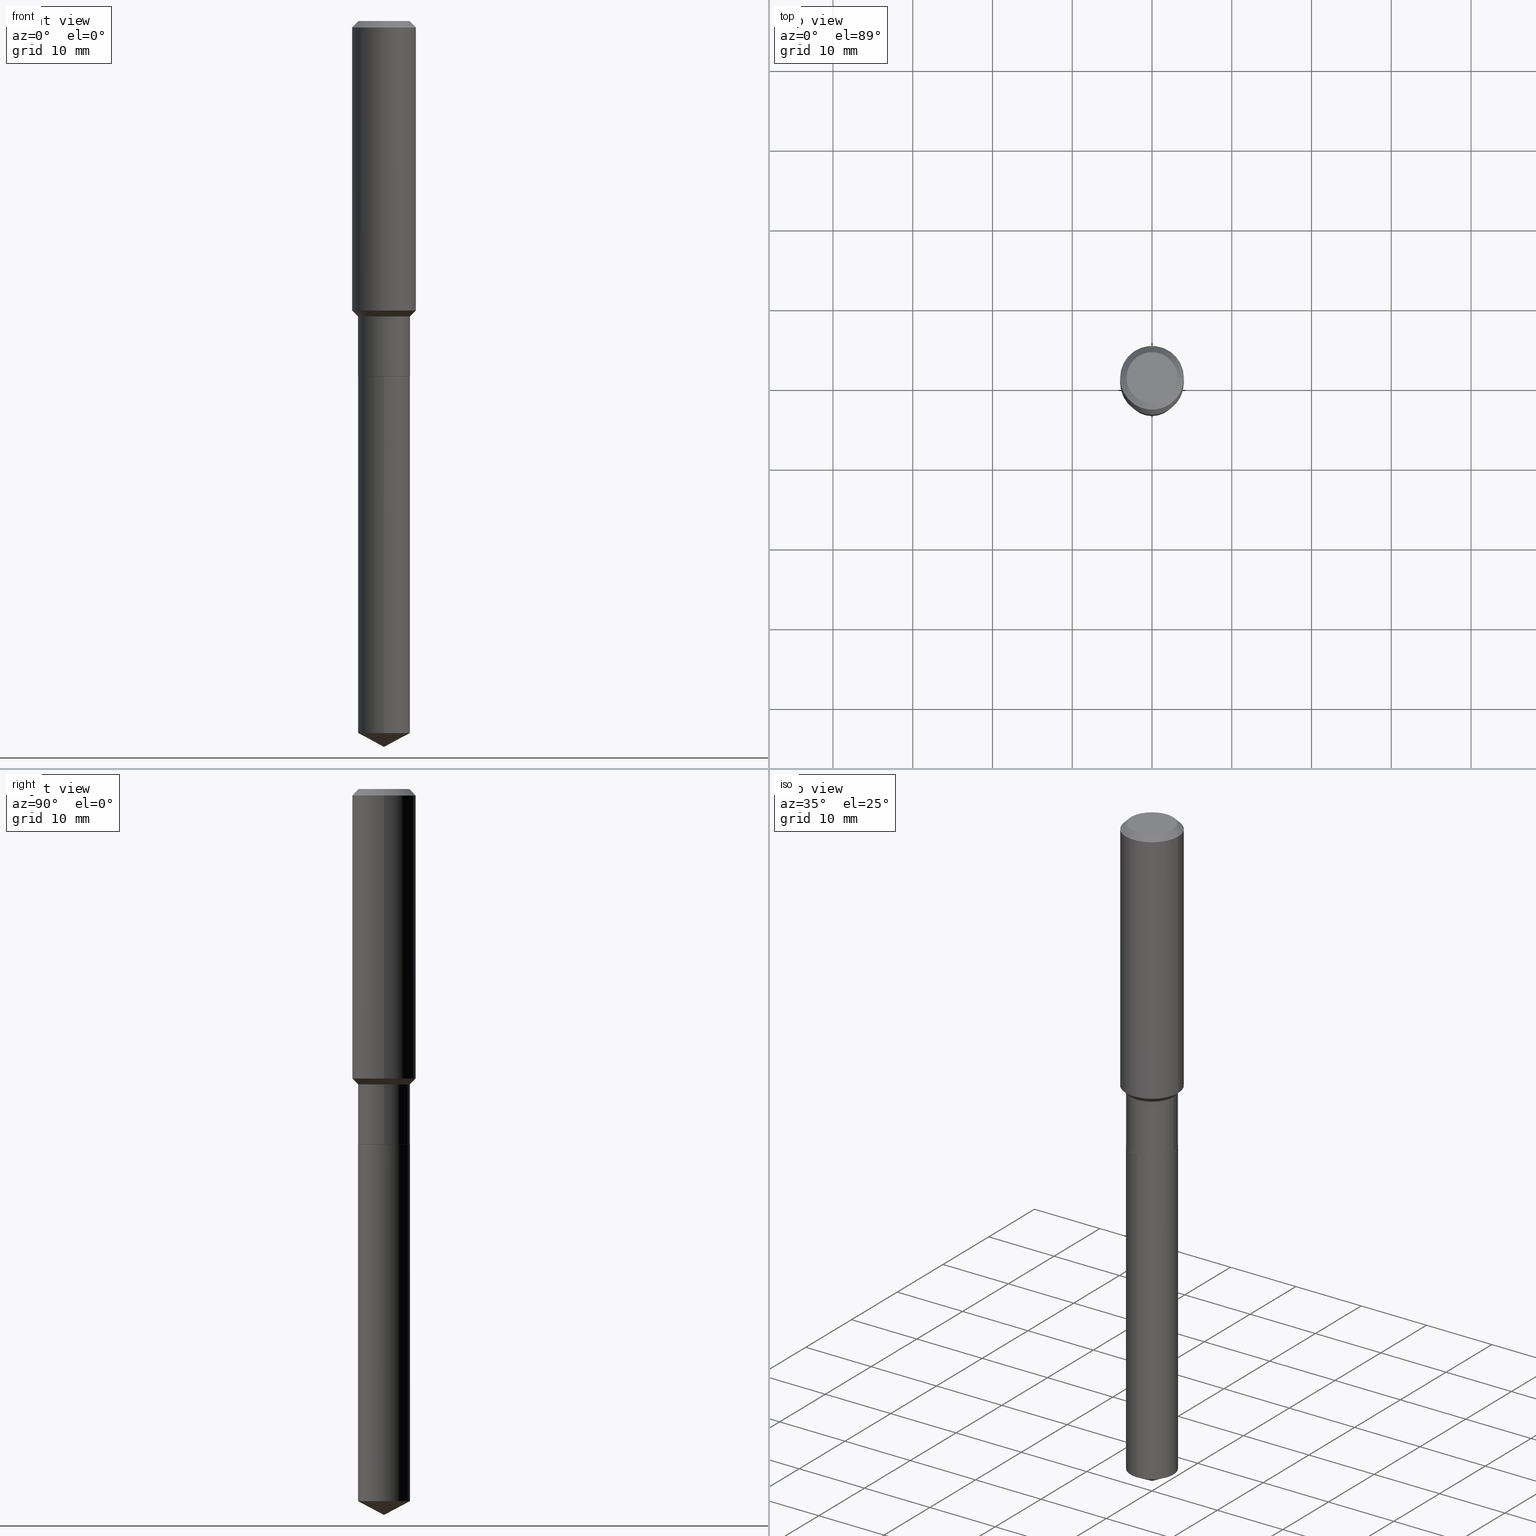
[diagram: canonical four-view strip — front | top / right | iso, engineering-drawing reading convention]
A machine part, canonical four-view strip (front | top / right | iso — engineering-drawing reading convention). The complete STEP part file that produces these views, byte-faithful:
ISO-10303-21;
HEADER;
FILE_DESCRIPTION (( 'STEP AP203' ),
    '1' );
FILE_NAME ('55171.STEP',
    '2024-04-24T16:48:14',
    ( '' ),
    ( '' ),
    'SwSTEP 2.0',
    'SolidWorks 2023',
    '' );
FILE_SCHEMA (( 'CONFIG_CONTROL_DESIGN' ));
ENDSEC;

DATA;
#1 = ORIENTED_EDGE ( 'NONE', *, *, #156, .T. ) ;
#2 = CARTESIAN_POINT ( 'NONE',  ( 9.130474154518147468E-16, 0.1284999999999877629, -3.514675338031501450 ) ) ;
#3 = AXIS2_PLACEMENT_3D ( 'NONE', #297, #151, #337 ) ;
#4 = AXIS2_PLACEMENT_3D ( 'NONE', #187, #296, #345 ) ;
#5 = PERSON_AND_ORGANIZATION ( #161, #273 ) ;
#6 = CARTESIAN_POINT ( 'NONE',  ( 8.762114242692642078E-29, -1.250997833859485187E-14, -3.583000000000000185 ) ) ;
#7 = EDGE_CURVE ( 'NONE', #407, #94, #390, .T. ) ;
#8 =( NAMED_UNIT ( * ) SI_UNIT ( $, .STERADIAN. ) SOLID_ANGLE_UNIT ( ) );
#9 = LINE ( 'NONE', #355, #428 ) ;
#10 = DIRECTION ( 'NONE',  ( 0.7071067811865479058, -2.468850131082261399E-15, 0.7071067811865470176 ) ) ;
#11 = ORIENTED_EDGE ( 'NONE', *, *, #115, .F. ) ;
#12 = EDGE_CURVE ( 'NONE', #289, #144, #204, .T. ) ;
#13 = EDGE_LOOP ( 'NONE', ( #110, #223, #470, #251 ) ) ;
#14 = CARTESIAN_POINT ( 'NONE',  ( 8.595028662167520806E-29, -1.227142369974973413E-14, -3.514675338031501006 ) ) ;
#15 = CIRCLE ( 'NONE', #238, 0.1575000000000001676 ) ;
#16 = EDGE_LOOP ( 'NONE', ( #128, #63, #18, #295 ) ) ;
#17 = CARTESIAN_POINT ( 'NONE',  ( 0.1575000000000000844, -1.099816621735587677E-15, 7.679978421878603638E-30 ) ) ;
#18 = ORIENTED_EDGE ( 'NONE', *, *, #29, .F. ) ;
#19 = ORIENTED_EDGE ( 'NONE', *, *, #206, .F. ) ;
#20 = LINE ( 'NONE', #334, #131 ) ;
#21 = CIRCLE ( 'NONE', #471, 0.1280000000000000027 ) ;
#22 =( GEOMETRIC_REPRESENTATION_CONTEXT ( 3 ) GLOBAL_UNCERTAINTY_ASSIGNED_CONTEXT ( ( #200 ) ) GLOBAL_UNIT_ASSIGNED_CONTEXT ( ( #51, #164, #8 ) ) REPRESENTATION_CONTEXT ( 'NONE', 'WORKASPACE' ) );
#23 = ORIENTED_EDGE ( 'NONE', *, *, #425, .F. ) ;
#24 = CARTESIAN_POINT ( 'NONE',  ( 3.564026238134218164E-29, -5.088484903230000551E-15, -1.457400000000000251 ) ) ;
#25 = DIRECTION ( 'NONE',  ( -2.445468806185136597E-29, 3.491481338843145583E-15, 1.000000000000000000 ) ) ;
#26 = DIRECTION ( 'NONE',  ( -2.445468806185136597E-29, 3.491481338843145583E-15, 1.000000000000000000 ) ) ;
#27 = LINE ( 'NONE', #414, #46 ) ;
#28 = CARTESIAN_POINT ( 'NONE',  ( 9.130474154517715566E-16, 0.1284999999999938969, -1.753000000000000336 ) ) ;
#29 = EDGE_CURVE ( 'NONE', #144, #289, #180, .T. ) ;
#30 = CARTESIAN_POINT ( 'NONE',  ( -9.439721640706201686E-47, 1.347742071746726764E-32, 3.860086710912459732E-18 ) ) ;
#31 = CARTESIAN_POINT ( 'NONE',  ( 4.285684082839451370E-29, -6.118821046322612189E-15, -1.752499999999999947 ) ) ;
#32 = EDGE_CURVE ( 'NONE', #298, #135, #121, .T. ) ;
#33 = AXIS2_PLACEMENT_3D ( 'NONE', #14, #443, #249 ) ;
#34 = AXIS2_PLACEMENT_3D ( 'NONE', #302, #449, #73 ) ;
#35 = CARTESIAN_POINT ( 'NONE',  ( 0.000000000000000000, 0.000000000000000000, 0.000000000000000000 ) ) ;
#36 = DIRECTION ( 'NONE',  ( -6.982962677686265922E-15, -1.000000000000000000, 4.251903492084456561E-15 ) ) ;
#37 = DATE_AND_TIME ( #418, #47 ) ;
#38 = CARTESIAN_POINT ( 'NONE',  ( -0.1285000000000000309, -4.690605559324578003E-15, -1.752499999999999947 ) ) ;
#39 = PRODUCT_DEFINITION ( 'UNKNOWN', '', #59, #120 ) ;
#40 = PERSON_AND_ORGANIZATION_ROLE ( 'creator' ) ;
#41 = AXIS2_PLACEMENT_3D ( 'NONE', #112, #268, #276 ) ;
#42 = AXIS2_PLACEMENT_3D ( 'NONE', #416, #220, #261 ) ;
#43 = EDGE_CURVE ( 'NONE', #316, #219, #21, .T. ) ;
#44 = CARTESIAN_POINT ( 'NONE',  ( 0.1280000000000000027, -7.014386009735874285E-15, -1.752999999999999670 ) ) ;
#45 = DIRECTION ( 'NONE',  ( 1.000000000000000000, -6.982962677686263555E-15, 0.000000000000000000 ) ) ;
#46 = VECTOR ( 'NONE', #374, 39.37007874015748143 ) ;
#47 = LOCAL_TIME ( 12, 48, 14.00000000000000000, #263 ) ;
#48 = DIRECTION ( 'NONE',  ( 1.000000000000000000, -6.982962677686267499E-15, 0.000000000000000000 ) ) ;
#49 = ADVANCED_FACE ( 'NONE', ( #96 ), #405, .T. ) ;
#50 = CARTESIAN_POINT ( 'NONE',  ( 8.762114242692642078E-29, -1.250997833859485187E-14, -3.583000000000000185 ) ) ;
#51 =( CONVERSION_BASED_UNIT ( 'INCH', #393 ) LENGTH_UNIT ( ) NAMED_UNIT ( #307 ) );
#52 = ORIENTED_EDGE ( 'NONE', *, *, #91, .F. ) ;
#53 = EDGE_CURVE ( 'NONE', #147, #361, #56, .T. ) ;
#54 =( LENGTH_UNIT ( ) NAMED_UNIT ( * ) SI_UNIT ( $, .METRE. ) );
#55 = ORIENTED_EDGE ( 'NONE', *, *, #87, .F. ) ;
#56 = LINE ( 'NONE', #17, #309 ) ;
#57 = AXIS2_PLACEMENT_3D ( 'NONE', #30, #265, #378 ) ;
#58 = AXIS2_PLACEMENT_3D ( 'NONE', #218, #475, #69 ) ;
#59 = PRODUCT_DEFINITION_FORMATION_WITH_SPECIFIED_SOURCE ( 'ANY', '', #176, .NOT_KNOWN. ) ;
#60 = ADVANCED_BREP_SHAPE_REPRESENTATION ( '55171', ( #193, #203, #310 ), #22 ) ;
#61 = FACE_OUTER_BOUND ( 'NONE', #366, .T. ) ;
#62 = ADVANCED_FACE ( 'NONE', ( #61 ), #222, .T. ) ;
#63 = ORIENTED_EDGE ( 'NONE', *, *, #425, .T. ) ;
#64 = CC_DESIGN_PERSON_AND_ORGANIZATION_ASSIGNMENT ( #5, #239, ( #176 ) ) ;
#65 = DIRECTION ( 'NONE',  ( 1.000000000000000000, -6.982962677686270655E-15, 0.000000000000000000 ) ) ;
#66 = DIRECTION ( 'NONE',  ( -2.445468806185136877E-29, 3.491481338843145188E-15, 1.000000000000000000 ) ) ;
#67 = DIRECTION ( 'NONE',  ( -2.445468669464873816E-29, 3.491481534634343453E-15, 1.000000000000000000 ) ) ;
#68 = EDGE_CURVE ( 'NONE', #269, #361, #27, .T. ) ;
#69 = DIRECTION ( 'NONE',  ( 1.000000000000000000, -6.982962677686267499E-15, 0.000000000000000000 ) ) ;
#70 = EDGE_LOOP ( 'NONE', ( #367, #488, #440, #11 ) ) ;
#71 = FACE_OUTER_BOUND ( 'NONE', #216, .T. ) ;
#72 = LINE ( 'NONE', #423, #163 ) ;
#73 = DIRECTION ( 'NONE',  ( -6.982962677686265922E-15, -1.000000000000000000, 4.251903492084456561E-15 ) ) ;
#74 = DIRECTION ( 'NONE',  ( -2.445468806185136597E-29, 3.491481338843145583E-15, 1.000000000000000000 ) ) ;
#75 = APPLICATION_CONTEXT ( 'configuration controlled 3d designs of mechanical parts and assemblies' ) ;
#76 = AXIS2_PLACEMENT_3D ( 'NONE', #168, #208, #322 ) ;
#77 = DIRECTION ( 'NONE',  ( -2.445468806185136597E-29, 3.491481338843145583E-15, 1.000000000000000000 ) ) ;
#78 = ORIENTED_EDGE ( 'NONE', *, *, #281, .T. ) ;
#79 = CARTESIAN_POINT ( 'NONE',  ( 4.286906817242543611E-29, -6.120566786992032115E-15, -1.752999999999999670 ) ) ;
#80 = FACE_OUTER_BOUND ( 'NONE', #362, .T. ) ;
#81 = CALENDAR_DATE ( 2024, 24, 4 ) ;
#82 = DIRECTION ( 'NONE',  ( 1.000000000000000000, -6.982962677686267499E-15, 4.876176775795936353E-29 ) ) ;
#83 = DATE_AND_TIME ( #458, #320 ) ;
#84 = SHAPE_DEFINITION_REPRESENTATION ( #430, #60 ) ;
#85 = CIRCLE ( 'NONE', #58, 0.1575000000000001676 ) ;
#86 = AXIS2_PLACEMENT_3D ( 'NONE', #89, #133, #389 ) ;
#87 = EDGE_CURVE ( 'NONE', #395, #165, #398, .T. ) ;
#88 = CONICAL_SURFACE ( 'NONE', #368, 0.1284999999999999754, 0.7853981633974489451 ) ;
#89 = CARTESIAN_POINT ( 'NONE',  ( 7.703226739483228723E-31, -1.099816621735597661E-16, -0.03150000000000019451 ) ) ;
#90 = DIRECTION ( 'NONE',  ( 1.000000000000000000, -6.982962677686267499E-15, 4.876176775795936353E-29 ) ) ;
#91 = EDGE_CURVE ( 'NONE', #407, #135, #72, .T. ) ;
#92 = EDGE_LOOP ( 'NONE', ( #23, #338, #214, #435 ) ) ;
#93 = CARTESIAN_POINT ( 'NONE',  ( 3.564026238134218164E-29, -5.088484903230000551E-15, -1.457400000000000251 ) ) ;
#94 = VERTEX_POINT ( 'NONE', #2 ) ;
#95 = ORIENTED_EDGE ( 'NONE', *, *, #325, .T. ) ;
#96 = FACE_OUTER_BOUND ( 'NONE', #142, .T. ) ;
#97 = ORIENTED_EDGE ( 'NONE', *, *, #431, .F. ) ;
#98 = DIRECTION ( 'NONE',  ( 1.000000000000000000, -6.982962677686265922E-15, 4.876176775795935232E-29 ) ) ;
#99 = COORDINATED_UNIVERSAL_TIME_OFFSET ( 5, 0, .BEHIND. ) ;
#100 = APPROVAL ( #192, 'UNSPECIFIED' ) ;
#101 = ORIENTED_EDGE ( 'NONE', *, *, #91, .T. ) ;
#102 = ORIENTED_EDGE ( 'NONE', *, *, #115, .T. ) ;
#103 = LINE ( 'NONE', #183, #122 ) ;
#104 = FACE_OUTER_BOUND ( 'NONE', #194, .T. ) ;
#105 = AXIS2_PLACEMENT_3D ( 'NONE', #305, #376, #411 ) ;
#106 = DIRECTION ( 'NONE',  ( -0.7071067811865479058, 7.493145998870355738E-15, 0.7071067811865470176 ) ) ;
#107 = APPROVAL ( #175, 'UNSPECIFIED' ) ;
#108 = DIRECTION ( 'NONE',  ( -6.982962677686266711E-15, -1.000000000000000000, 3.541896320645532864E-15 ) ) ;
#109 = COORDINATED_UNIVERSAL_TIME_OFFSET ( 5, 0, .BEHIND. ) ;
#110 = ORIENTED_EDGE ( 'NONE', *, *, #29, .T. ) ;
#111 = CARTESIAN_POINT ( 'NONE',  ( 4.286906817242544172E-29, -6.120566786992033692E-15, -1.752999999999999892 ) ) ;
#112 = CARTESIAN_POINT ( 'NONE',  ( 8.595028662167520806E-29, -1.227142369974973413E-14, -3.514675338031501006 ) ) ;
#113 = CARTESIAN_POINT ( 'NONE',  ( 4.286906817242544172E-29, -6.120566786992033692E-15, -1.752999999999999892 ) ) ;
#114 = DATE_AND_TIME ( #81, #381 ) ;
#115 = EDGE_CURVE ( 'NONE', #134, #469, #448, .T. ) ;
#116 = VECTOR ( 'NONE', #480, 39.37007874015748143 ) ;
#117 = CIRCLE ( 'NONE', #34, 0.1285000000000000031 ) ;
#118 = PLANE ( 'NONE',  #129 ) ;
#119 = ADVANCED_FACE ( 'NONE', ( #188 ), #88, .T. ) ;
#120 = DESIGN_CONTEXT ( 'detailed design', #75, 'design' ) ;
#121 = CIRCLE ( 'NONE', #76, 0.1285000000000000031 ) ;
#122 = VECTOR ( 'NONE', #66, 39.37007874015748143 ) ;
#123 = CC_DESIGN_APPROVAL ( #107, ( #39 ) ) ;
#124 = DIRECTION ( 'NONE',  ( -2.445468806185136597E-29, 3.491481338843145583E-15, 1.000000000000000000 ) ) ;
#125 = LINE ( 'NONE', #50, #386 ) ;
#126 = APPROVAL ( #424, 'UNSPECIFIED' ) ;
#127 = FACE_OUTER_BOUND ( 'NONE', #70, .T. ) ;
#128 = ORIENTED_EDGE ( 'NONE', *, *, #87, .T. ) ;
#129 = AXIS2_PLACEMENT_3D ( 'NONE', #191, #196, #266 ) ;
#130 = ORIENTED_EDGE ( 'NONE', *, *, #437, .T. ) ;
#131 = VECTOR ( 'NONE', #106, 39.37007874015748854 ) ;
#132 = CARTESIAN_POINT ( 'NONE',  ( -0.1284999999999999754, -4.690605559324578003E-15, -1.457400000000000251 ) ) ;
#133 = DIRECTION ( 'NONE',  ( 2.445468806185136597E-29, -3.491481338843145583E-15, -1.000000000000000000 ) ) ;
#134 = VERTEX_POINT ( 'NONE', #157 ) ;
#135 = VERTEX_POINT ( 'NONE', #155 ) ;
#136 = EDGE_CURVE ( 'NONE', #264, #469, #146, .T. ) ;
#137 = ORIENTED_EDGE ( 'NONE', *, *, #281, .F. ) ;
#138 = EDGE_LOOP ( 'NONE', ( #137, #436, #326 ) ) ;
#139 = PRODUCT_RELATED_PRODUCT_CATEGORY ( 'detail', '', ( #176 ) ) ;
#140 = APPROVAL_PERSON_ORGANIZATION ( #294, #107, #215 ) ;
#141 = CARTESIAN_POINT ( 'NONE',  ( -0.1280000000000000027, -5.211072085219104647E-15, -1.752999999999999670 ) ) ;
#142 = EDGE_LOOP ( 'NONE', ( #401, #304, #101, #210 ) ) ;
#143 = ADVANCED_FACE ( 'NONE', ( #341 ), #432, .T. ) ;
#144 = VERTEX_POINT ( 'NONE', #335 ) ;
#145 = CARTESIAN_POINT ( 'NONE',  ( -9.439721640706201686E-47, 1.347742071746726764E-32, 3.860086710912459732E-18 ) ) ;
#146 = LINE ( 'NONE', #383, #116 ) ;
#147 = VERTEX_POINT ( 'NONE', #228 ) ;
#148 = FACE_OUTER_BOUND ( 'NONE', #207, .T. ) ;
#149 = AXIS2_PLACEMENT_3D ( 'NONE', #111, #299, #36 ) ;
#150 = DIRECTION ( 'NONE',  ( 1.000000000000000000, -6.982962677686270655E-15, 0.000000000000000000 ) ) ;
#151 = DIRECTION ( 'NONE',  ( -2.445468806185136597E-29, 3.491481338843145583E-15, 1.000000000000000000 ) ) ;
#152 = APPROVAL_ROLE ( '' ) ;
#153 = EDGE_LOOP ( 'NONE', ( #95, #243, #347, #333 ) ) ;
#154 = DIRECTION ( 'NONE',  ( -2.445468806185136597E-29, 3.491481338843145583E-15, 1.000000000000000000 ) ) ;
#155 = CARTESIAN_POINT ( 'NONE',  ( -8.973107040826423819E-16, -0.1285000000000061093, -1.752999999999999226 ) ) ;
#156 = EDGE_CURVE ( 'NONE', #219, #316, #159, .T. ) ;
#157 = CARTESIAN_POINT ( 'NONE',  ( -0.1260000000000000009, 9.348441284752484904E-16, 3.860086710906114178E-18 ) ) ;
#158 = PERSON_AND_ORGANIZATION_ROLE ( 'creator' ) ;
#159 = CIRCLE ( 'NONE', #3, 0.1280000000000000027 ) ;
#160 = CONICAL_SURFACE ( 'NONE', #86, 0.1575000000000000011, 0.7853981633974449483 ) ;
#161 = PERSON ( 'UNSPECIFIED', 'UNSPECIFIED', 'UNSPECIFIED', ('UNSPECIFIED'), ('UNSPECIFIED'), ('UNSPECIFIED') ) ;
#162 = CARTESIAN_POINT ( 'NONE',  ( 0.1280000000000000027, -7.014386009735874285E-15, -1.752999999999999670 ) ) ;
#163 = VECTOR ( 'NONE', #185, 39.37007874015748143 ) ;
#164 =( NAMED_UNIT ( * ) PLANE_ANGLE_UNIT ( ) SI_UNIT ( $, .RADIAN. ) );
#165 = VERTEX_POINT ( 'NONE', #38 ) ;
#166 = FACE_OUTER_BOUND ( 'NONE', #16, .T. ) ;
#167 = AXIS2_PLACEMENT_3D ( 'NONE', #231, #124, #45 ) ;
#168 = CARTESIAN_POINT ( 'NONE',  ( 4.286906817242544172E-29, -6.120566786992033692E-15, -1.752999999999999892 ) ) ;
#169 = CC_DESIGN_APPROVAL ( #100, ( #342 ) ) ;
#170 = CARTESIAN_POINT ( 'NONE',  ( 0.000000000000000000, 0.000000000000000000, 0.000000000000000000 ) ) ;
#171 = ADVANCED_FACE ( 'NONE', ( #226 ), #445, .T. ) ;
#172 = CARTESIAN_POINT ( 'NONE',  ( 0.1284999999999999754, -5.985795607312685728E-15, -1.457400000000000251 ) ) ;
#173 = ORIENTED_EDGE ( 'NONE', *, *, #437, .F. ) ;
#174 = DIRECTION ( 'NONE',  ( -2.445468806185136597E-29, 3.491481338843145583E-15, 1.000000000000000000 ) ) ;
#175 = APPROVAL_STATUS ( 'not_yet_approved' ) ;
#176 = PRODUCT ( '55171', '55171', '', ( #286 ) ) ;
#177 = CARTESIAN_POINT ( 'NONE',  ( 3.564026238134218164E-29, -5.088484903230000551E-15, -1.457400000000000251 ) ) ;
#178 = CLOSED_SHELL ( 'NONE', ( #404, #462, #466, #119, #336, #453, #419, #171, #62, #195, #181, #274 ) ) ;
#179 = DIRECTION ( 'NONE',  ( 1.000000000000000000, -6.982962677686270655E-15, 0.000000000000000000 ) ) ;
#180 = CIRCLE ( 'NONE', #379, 0.1284999999999999754 ) ;
#181 = ADVANCED_FACE ( 'NONE', ( #104 ), #450, .F. ) ;
#182 = EDGE_LOOP ( 'NONE', ( #290, #476 ) ) ;
#183 = CARTESIAN_POINT ( 'NONE',  ( -0.1285000000000000031, 9.130474154517287609E-16, -6.320831590977552957E-30 ) ) ;
#184 = CARTESIAN_POINT ( 'NONE',  ( 7.703226739483228723E-31, -1.099816621735597661E-16, -0.03150000000000019451 ) ) ;
#185 = DIRECTION ( 'NONE',  ( -2.445468669464873816E-29, 3.491481534634343059E-15, 1.000000000000000000 ) ) ;
#186 = APPLICATION_CONTEXT ( 'configuration controlled 3d designs of mechanical parts and assemblies' ) ;
#187 = CARTESIAN_POINT ( 'NONE',  ( -8.751617959105697728E-28, 1.249499249429870860E-13, 35.78707874015748303 ) ) ;
#188 = FACE_OUTER_BOUND ( 'NONE', #13, .T. ) ;
#189 = CARTESIAN_POINT ( 'NONE',  ( 0.000000000000000000, 0.000000000000000000, 0.000000000000000000 ) ) ;
#190 = ADVANCED_FACE ( 'NONE', ( #148 ), #455, .T. ) ;
#191 = CARTESIAN_POINT ( 'NONE',  ( -4.719860820353100843E-47, 6.738710358733633822E-33, 1.930043355456229866E-18 ) ) ;
#192 = APPROVAL_STATUS ( 'not_yet_approved' ) ;
#193 = MANIFOLD_SOLID_BREP ( 'Body-Move/Copy2[1]', #441 ) ;
#194 = EDGE_LOOP ( 'NONE', ( #446, #324 ) ) ;
#195 = ADVANCED_FACE ( 'NONE', ( #80 ), #118, .F. ) ;
#196 = DIRECTION ( 'NONE',  ( 2.438088387897960049E-29, -3.491481338843145188E-15, -1.000000000000000000 ) ) ;
#197 = DATE_TIME_ROLE ( 'classification_date' ) ;
#198 = AXIS2_PLACEMENT_3D ( 'NONE', #113, #275, #270 ) ;
#199 = PERSON_AND_ORGANIZATION ( #161, #273 ) ;
#200 = UNCERTAINTY_MEASURE_WITH_UNIT (LENGTH_MEASURE( 1.000000000000000082E-05 ), #51, 'distance_accuracy_value', 'NONE');
#201 = CC_DESIGN_PERSON_AND_ORGANIZATION_ASSIGNMENT ( #308, #277, ( #342 ) ) ;
#202 = CARTESIAN_POINT ( 'NONE',  ( -0.1575000000000001676, -3.868127135581389429E-15, -1.428399999999999892 ) ) ;
#203 = MANIFOLD_SOLID_BREP ( 'Body-Move/Copy2[2]', #178 ) ;
#204 = CIRCLE ( 'NONE', #314, 0.1284999999999999754 ) ;
#205 = AXIS2_PLACEMENT_3D ( 'NONE', #35, #154, #409 ) ;
#206 = EDGE_CURVE ( 'NONE', #472, #94, #417, .T. ) ;
#207 = EDGE_LOOP ( 'NONE', ( #250, #331, #97, #52 ) ) ;
#208 = DIRECTION ( 'NONE',  ( -2.445468669464873816E-29, 3.491481534634343453E-15, 1.000000000000000000 ) ) ;
#209 = ADVANCED_FACE ( 'NONE', ( #452 ), #348, .F. ) ;
#210 = ORIENTED_EDGE ( 'NONE', *, *, #32, .F. ) ;
#211 = CIRCLE ( 'NONE', #57, 0.1260000000000000009 ) ;
#212 = ORIENTED_EDGE ( 'NONE', *, *, #53, .T. ) ;
#213 = CONICAL_SURFACE ( 'NONE', #370, 0.1280000000000000027, 0.7853981633978239785 ) ;
#214 = ORIENTED_EDGE ( 'NONE', *, *, #315, .T. ) ;
#215 = APPROVAL_ROLE ( '' ) ;
#216 = EDGE_LOOP ( 'NONE', ( #464, #130, #55, #444 ) ) ;
#217 = ORIENTED_EDGE ( 'NONE', *, *, #483, .T. ) ;
#218 = CARTESIAN_POINT ( 'NONE',  ( 3.493107642754849131E-29, -4.987231944403549399E-15, -1.428399999999999892 ) ) ;
#219 = VERTEX_POINT ( 'NONE', #233 ) ;
#220 = DIRECTION ( 'NONE',  ( -2.445468806185136597E-29, 3.491481338843145583E-15, 1.000000000000000000 ) ) ;
#221 = ORIENTED_EDGE ( 'NONE', *, *, #255, .F. ) ;
#222 = CONICAL_SURFACE ( 'NONE', #229, 0.1575000000000000011, 0.7853981633974449483 ) ;
#223 = ORIENTED_EDGE ( 'NONE', *, *, #372, .T. ) ;
#224 = DIRECTION ( 'NONE',  ( -2.445468806185136597E-29, 3.491481338843145583E-15, 1.000000000000000000 ) ) ;
#225 = DIRECTION ( 'NONE',  ( -2.445468806185136597E-29, 3.491481338843145583E-15, 1.000000000000000000 ) ) ;
#226 = FACE_OUTER_BOUND ( 'NONE', #284, .T. ) ;
#227 = LINE ( 'NONE', #141, #442 ) ;
#228 = CARTESIAN_POINT ( 'NONE',  ( 0.1575000000000001676, -6.087048566139137668E-15, -1.428399999999999892 ) ) ;
#229 = AXIS2_PLACEMENT_3D ( 'NONE', #184, #421, #262 ) ;
#230 = LOCAL_TIME ( 12, 48, 14.00000000000000000, #426 ) ;
#231 = CARTESIAN_POINT ( 'NONE',  ( 4.286906817242543611E-29, -6.120566786992032115E-15, -1.752999999999999670 ) ) ;
#232 = ORIENTED_EDGE ( 'NONE', *, *, #136, .F. ) ;
#233 = CARTESIAN_POINT ( 'NONE',  ( -0.1280000000000000027, -5.208422858044994235E-15, -1.752999999999999670 ) ) ;
#234 = EDGE_CURVE ( 'NONE', #264, #147, #85, .T. ) ;
#235 = APPROVAL_DATE_TIME ( #406, #107 ) ;
#236 = CC_DESIGN_DATE_AND_TIME_ASSIGNMENT ( #37, #197, ( #342 ) ) ;
#237 = PERSON_AND_ORGANIZATION ( #161, #273 ) ;
#238 = AXIS2_PLACEMENT_3D ( 'NONE', #313, #350, #48 ) ;
#239 = PERSON_AND_ORGANIZATION_ROLE ( 'design_owner' ) ;
#240 = EDGE_CURVE ( 'NONE', #361, #469, #465, .T. ) ;
#241 = DIRECTION ( 'NONE',  ( 1.000000000000000000, 0.000000000000000000, 0.000000000000000000 ) ) ;
#242 = CARTESIAN_POINT ( 'NONE',  ( -0.1575000000000000011, -1.429501994466395839E-15, -0.03150000000000019451 ) ) ;
#243 = ORIENTED_EDGE ( 'NONE', *, *, #136, .T. ) ;
#244 = DIRECTION ( 'NONE',  ( -2.445468806185136597E-29, 3.491481338843145583E-15, 1.000000000000000000 ) ) ;
#245 = DIRECTION ( 'NONE',  ( -2.445468669464873816E-29, 3.491481534634343059E-15, 1.000000000000000000 ) ) ;
#246 = DIRECTION ( 'NONE',  ( -2.445468669464873816E-29, 3.491481534634343453E-15, 1.000000000000000000 ) ) ;
#247 = ORIENTED_EDGE ( 'NONE', *, *, #387, .T. ) ;
#248 = CC_DESIGN_SECURITY_CLASSIFICATION ( #342, ( #59 ) ) ;
#249 = DIRECTION ( 'NONE',  ( -6.982962677686265922E-15, -1.000000000000000000, 4.251903492084456561E-15 ) ) ;
#250 = ORIENTED_EDGE ( 'NONE', *, *, #7, .T. ) ;
#251 = ORIENTED_EDGE ( 'NONE', *, *, #459, .F. ) ;
#252 = DIRECTION ( 'NONE',  ( 1.000000000000000000, -6.982962677686269077E-15, 0.000000000000000000 ) ) ;
#253 = DIRECTION ( 'NONE',  ( 1.000000000000000000, -6.982962677686263555E-15, 0.000000000000000000 ) ) ;
#254 = CALENDAR_DATE ( 2024, 24, 4 ) ;
#255 = EDGE_CURVE ( 'NONE', #94, #407, #278, .T. ) ;
#256 = ORIENTED_EDGE ( 'NONE', *, *, #363, .F. ) ;
#257 = CYLINDRICAL_SURFACE ( 'NONE', #205, 0.1285000000000000031 ) ;
#258 = CARTESIAN_POINT ( 'NONE',  ( -0.1575000000000000011, 9.898349595620272334E-16, -0.03150000000000019451 ) ) ;
#259 = AXIS2_PLACEMENT_3D ( 'NONE', #375, #77, #427 ) ;
#260 = AXIS2_PLACEMENT_3D ( 'NONE', #373, #292, #252 ) ;
#261 = DIRECTION ( 'NONE',  ( 1.000000000000000000, -6.982962677686265922E-15, 0.000000000000000000 ) ) ;
#262 = DIRECTION ( 'NONE',  ( -1.000000000000000000, 6.982962677686265922E-15, 0.000000000000000000 ) ) ;
#263 = COORDINATED_UNIVERSAL_TIME_OFFSET ( 5, 0, .BEHIND. ) ;
#264 = VERTEX_POINT ( 'NONE', #202 ) ;
#265 = DIRECTION ( 'NONE',  ( -2.445468806185136597E-29, 3.491481338843145583E-15, 1.000000000000000000 ) ) ;
#266 = DIRECTION ( 'NONE',  ( -1.000000000000000000, 6.982962677686265922E-15, -4.876176775795935793E-29 ) ) ;
#267 = SECURITY_CLASSIFICATION_LEVEL ( 'unclassified' ) ;
#268 = DIRECTION ( 'NONE',  ( -2.445468669464873816E-29, 3.491481534634343453E-15, 1.000000000000000000 ) ) ;
#269 = VERTEX_POINT ( 'NONE', #388 ) ;
#270 = DIRECTION ( 'NONE',  ( 6.982962677686265922E-15, 1.000000000000000000, -3.491481534634343059E-15 ) ) ;
#271 = CALENDAR_DATE ( 2024, 24, 4 ) ;
#272 = AXIS2_PLACEMENT_3D ( 'NONE', #438, #246, #396 ) ;
#273 = ORGANIZATION ( 'UNSPECIFIED', 'UNSPECIFIED', '' ) ;
#274 = ADVANCED_FACE ( 'NONE', ( #353 ), #279, .T. ) ;
#275 = DIRECTION ( 'NONE',  ( 2.445468669464873816E-29, -3.491481534634343059E-15, -1.000000000000000000 ) ) ;
#276 = DIRECTION ( 'NONE',  ( -6.982962677686265922E-15, -1.000000000000000000, 4.251903492084456561E-15 ) ) ;
#277 = PERSON_AND_ORGANIZATION_ROLE ( 'classification_officer' ) ;
#278 = CIRCLE ( 'NONE', #41, 0.1285000000000000031 ) ;
#279 = CONICAL_SURFACE ( 'NONE', #167, 0.1280000000000000027, 0.7853981633978239785 ) ;
#280 = LOCAL_TIME ( 12, 48, 14.00000000000000000, #99 ) ;
#281 = EDGE_CURVE ( 'NONE', #472, #407, #125, .T. ) ;
#282 = DIRECTION ( 'NONE',  ( 0.000000000000000000, 0.000000000000000000, 1.000000000000000000 ) ) ;
#283 = AXIS2_PLACEMENT_3D ( 'NONE', #24, #484, #150 ) ;
#284 = EDGE_LOOP ( 'NONE', ( #232, #415, #212, #256 ) ) ;
#285 = CARTESIAN_POINT ( 'NONE',  ( 9.130474154518149440E-16, 0.1284999999999938969, -1.753000000000000336 ) ) ;
#286 = MECHANICAL_CONTEXT ( 'NONE', #186, 'mechanical' ) ;
#287 = CC_DESIGN_PERSON_AND_ORGANIZATION_ASSIGNMENT ( #349, #382, ( #59 ) ) ;
#288 = ORIENTED_EDGE ( 'NONE', *, *, #363, .T. ) ;
#289 = VERTEX_POINT ( 'NONE', #132 ) ;
#290 = ORIENTED_EDGE ( 'NONE', *, *, #431, .T. ) ;
#291 = ORIENTED_EDGE ( 'NONE', *, *, #68, .F. ) ;
#292 = DIRECTION ( 'NONE',  ( -2.445468806185136597E-29, 3.491481338843145583E-15, 1.000000000000000000 ) ) ;
#293 = ORIENTED_EDGE ( 'NONE', *, *, #387, .F. ) ;
#294 = PERSON_AND_ORGANIZATION ( #161, #273 ) ;
#295 = ORIENTED_EDGE ( 'NONE', *, *, #315, .F. ) ;
#296 = DIRECTION ( 'NONE',  ( -2.445468669464873816E-29, 3.491481534634343453E-15, 1.000000000000000000 ) ) ;
#297 = CARTESIAN_POINT ( 'NONE',  ( 4.286906817242543611E-29, -6.120566786992032115E-15, -1.752999999999999670 ) ) ;
#298 = VERTEX_POINT ( 'NONE', #285 ) ;
#299 = DIRECTION ( 'NONE',  ( -2.445468669464873816E-29, 3.491481534634343453E-15, 1.000000000000000000 ) ) ;
#300 = CIRCLE ( 'NONE', #260, 0.1285000000000000031 ) ;
#301 = ORIENTED_EDGE ( 'NONE', *, *, #354, .T. ) ;
#302 = CARTESIAN_POINT ( 'NONE',  ( 4.286906817242544172E-29, -6.120566786992033692E-15, -1.752999999999999892 ) ) ;
#303 = CARTESIAN_POINT ( 'NONE',  ( 0.000000000000000000, 0.000000000000000000, 0.000000000000000000 ) ) ;
#304 = ORIENTED_EDGE ( 'NONE', *, *, #255, .T. ) ;
#305 = CARTESIAN_POINT ( 'NONE',  ( 6.899478394919458068E-29, -2.379215589419022521E-15, -1.752999999999999670 ) ) ;
#306 = DIRECTION ( 'NONE',  ( -0.7071067811865451302, 2.468850131082231817E-15, -0.7071067811865499042 ) ) ;
#307 = DIMENSIONAL_EXPONENTS ( 1.000000000000000000, 0.000000000000000000, 0.000000000000000000, 0.000000000000000000, 0.000000000000000000, 0.000000000000000000, 0.000000000000000000 ) ;
#308 = PERSON_AND_ORGANIZATION ( #161, #273 ) ;
#309 = VECTOR ( 'NONE', #403, 39.37007874015748143 ) ;
#310 = AXIS2_PLACEMENT_3D ( 'NONE', #170, #282, #241 ) ;
#311 = COORDINATED_UNIVERSAL_TIME_OFFSET ( 5, 0, .BEHIND. ) ;
#312 = EDGE_CURVE ( 'NONE', #94, #298, #412, .T. ) ;
#313 = CARTESIAN_POINT ( 'NONE',  ( 3.493107642754849131E-29, -4.987231944403549399E-15, -1.428399999999999892 ) ) ;
#314 = AXIS2_PLACEMENT_3D ( 'NONE', #177, #174, #179 ) ;
#315 = EDGE_CURVE ( 'NONE', #395, #144, #9, .T. ) ;
#316 = VERTEX_POINT ( 'NONE', #162 ) ;
#317 = ORIENTED_EDGE ( 'NONE', *, *, #372, .F. ) ;
#318 = DIRECTION ( 'NONE',  ( -2.445468806185136877E-29, 3.491481338843145188E-15, 1.000000000000000000 ) ) ;
#319 = DIRECTION ( 'NONE',  ( -6.165590087286843918E-15, -0.8829475928589277656, 0.4694715627858889184 ) ) ;
#320 = LOCAL_TIME ( 12, 48, 14.00000000000000000, #311 ) ;
#321 = LINE ( 'NONE', #44, #429 ) ;
#322 = DIRECTION ( 'NONE',  ( -6.982962677686265922E-15, -1.000000000000000000, 4.251903492084456561E-15 ) ) ;
#323 = DIRECTION ( 'NONE',  ( -2.445468806185136597E-29, 3.491481338843145583E-15, 1.000000000000000000 ) ) ;
#324 = ORIENTED_EDGE ( 'NONE', *, *, #156, .F. ) ;
#325 = EDGE_CURVE ( 'NONE', #147, #264, #15, .T. ) ;
#326 = ORIENTED_EDGE ( 'NONE', *, *, #7, .F. ) ;
#327 = EDGE_LOOP ( 'NONE', ( #317, #399, #420, #481 ) ) ;
#328 = VECTOR ( 'NONE', #306, 39.37007874015748143 ) ;
#329 = FACE_OUTER_BOUND ( 'NONE', #364, .T. ) ;
#330 = CONICAL_SURFACE ( 'NONE', #283, 0.1284999999999999754, 0.7853981633974489451 ) ;
#331 = ORIENTED_EDGE ( 'NONE', *, *, #312, .T. ) ;
#332 = CC_DESIGN_DATE_AND_TIME_ASSIGNMENT ( #114, #344, ( #39 ) ) ;
#333 = ORIENTED_EDGE ( 'NONE', *, *, #53, .F. ) ;
#334 = CARTESIAN_POINT ( 'NONE',  ( -0.1284999999999999754, -4.175437487778271395E-15, -1.457400000000000251 ) ) ;
#335 = CARTESIAN_POINT ( 'NONE',  ( 0.1284999999999999754, -5.985795607312685728E-15, -1.457400000000000251 ) ) ;
#336 = ADVANCED_FACE ( 'NONE', ( #166 ), #460, .T. ) ;
#337 = DIRECTION ( 'NONE',  ( 1.000000000000000000, -6.982962677686263555E-15, 0.000000000000000000 ) ) ;
#338 = ORIENTED_EDGE ( 'NONE', *, *, #457, .T. ) ;
#339 = FACE_OUTER_BOUND ( 'NONE', #327, .T. ) ;
#340 = CIRCLE ( 'NONE', #42, 0.1575000000000000011 ) ;
#341 = FACE_OUTER_BOUND ( 'NONE', #138, .T. ) ;
#342 = SECURITY_CLASSIFICATION ( '', '', #267 ) ;
#343 = AXIS2_PLACEMENT_3D ( 'NONE', #439, #323, #90 ) ;
#344 = DATE_TIME_ROLE ( 'creation_date' ) ;
#345 = DIRECTION ( 'NONE',  ( -6.982962677686266711E-15, -1.000000000000000000, 3.541896320645532864E-15 ) ) ;
#346 = DIRECTION ( 'NONE',  ( 1.000000000000000000, -6.982962677686269077E-15, 0.000000000000000000 ) ) ;
#347 = ORIENTED_EDGE ( 'NONE', *, *, #240, .F. ) ;
#348 = PLANE ( 'NONE',  #198 ) ;
#349 = PERSON_AND_ORGANIZATION ( #161, #273 ) ;
#350 = DIRECTION ( 'NONE',  ( -2.445468806185136597E-29, 3.491481338843145583E-15, 1.000000000000000000 ) ) ;
#351 = CC_DESIGN_PERSON_AND_ORGANIZATION_ASSIGNMENT ( #199, #158, ( #59 ) ) ;
#352 = AXIS2_PLACEMENT_3D ( 'NONE', #303, #74, #82 ) ;
#353 = FACE_OUTER_BOUND ( 'NONE', #394, .T. ) ;
#354 = EDGE_CURVE ( 'NONE', #269, #134, #211, .T. ) ;
#355 = CARTESIAN_POINT ( 'NONE',  ( 0.1285000000000000031, -8.973107040826851776E-16, 6.265887156897776961E-30 ) ) ;
#356 = APPLICATION_PROTOCOL_DEFINITION ( 'international standard', 'config_control_design', 1994, #75 ) ;
#357 = DIRECTION ( 'NONE',  ( 0.7071067811868130271, -2.468850131085038979E-15, 0.7071067811862817853 ) ) ;
#358 = AXIS2_PLACEMENT_3D ( 'NONE', #486, #67, #108 ) ;
#359 = APPROVAL_PERSON_ORGANIZATION ( #237, #126, #152 ) ;
#360 = AXIS2_PLACEMENT_3D ( 'NONE', #31, #224, #346 ) ;
#361 = VERTEX_POINT ( 'NONE', #451 ) ;
#362 = EDGE_LOOP ( 'NONE', ( #247, #301 ) ) ;
#363 = EDGE_CURVE ( 'NONE', #469, #361, #340, .T. ) ;
#364 = EDGE_LOOP ( 'NONE', ( #19, #78, #221 ) ) ;
#365 = CC_DESIGN_PERSON_AND_ORGANIZATION_ASSIGNMENT ( #454, #40, ( #39 ) ) ;
#366 = EDGE_LOOP ( 'NONE', ( #291, #293, #102, #288 ) ) ;
#367 = ORIENTED_EDGE ( 'NONE', *, *, #354, .F. ) ;
#368 = AXIS2_PLACEMENT_3D ( 'NONE', #371, #25, #478 ) ;
#369 = DIRECTION ( 'NONE',  ( 1.000000000000000000, -6.982962677686263555E-15, 0.000000000000000000 ) ) ;
#370 = AXIS2_PLACEMENT_3D ( 'NONE', #79, #225, #369 ) ;
#371 = CARTESIAN_POINT ( 'NONE',  ( 3.564026238134218164E-29, -5.088484903230000551E-15, -1.457400000000000251 ) ) ;
#372 = EDGE_CURVE ( 'NONE', #289, #264, #20, .T. ) ;
#373 = CARTESIAN_POINT ( 'NONE',  ( 4.285684082839451370E-29, -6.118821046322612189E-15, -1.752499999999999947 ) ) ;
#374 = DIRECTION ( 'NONE',  ( 0.7071067811865451302, -7.319954787623248157E-15, -0.7071067811865499042 ) ) ;
#375 = CARTESIAN_POINT ( 'NONE',  ( 7.703226739483228723E-31, -1.099816621735597661E-16, -0.03150000000000019451 ) ) ;
#376 = DIRECTION ( 'NONE',  ( -2.438088387897960049E-29, 3.491481338843145188E-15, 1.000000000000000000 ) ) ;
#377 = APPROVAL_ROLE ( '' ) ;
#378 = DIRECTION ( 'NONE',  ( 1.000000000000000000, -6.982962677686265922E-15, 4.876281427513067258E-29 ) ) ;
#379 = AXIS2_PLACEMENT_3D ( 'NONE', #93, #244, #65 ) ;
#380 = CARTESIAN_POINT ( 'NONE',  ( 8.762114726237140435E-29, -1.250997765215091232E-14, -3.583000000000000185 ) ) ;
#381 = LOCAL_TIME ( 12, 48, 14.00000000000000000, #109 ) ;
#382 = PERSON_AND_ORGANIZATION_ROLE ( 'design_supplier' ) ;
#383 = CARTESIAN_POINT ( 'NONE',  ( -0.1575000000000000844, 1.119104808822158392E-15, -7.747322767151481189E-30 ) ) ;
#384 = APPROVAL_DATE_TIME ( #487, #100 ) ;
#385 = APPROVAL_DATE_TIME ( #83, #126 ) ;
#386 = VECTOR ( 'NONE', #319, 39.37007874015748854 ) ;
#387 = EDGE_CURVE ( 'NONE', #134, #269, #400, .T. ) ;
#388 = CARTESIAN_POINT ( 'NONE',  ( 0.1260000000000000009, -1.027466422270894443E-15, 3.860086710919128072E-18 ) ) ;
#389 = DIRECTION ( 'NONE',  ( -1.000000000000000000, 6.982962677686265922E-15, 0.000000000000000000 ) ) ;
#390 = CIRCLE ( 'NONE', #33, 0.1285000000000000031 ) ;
#391 = APPROVAL_PERSON_ORGANIZATION ( #456, #100, #377 ) ;
#392 = APPLICATION_PROTOCOL_DEFINITION ( 'international standard', 'config_control_design', 1994, #186 ) ;
#393 = LENGTH_MEASURE_WITH_UNIT ( LENGTH_MEASURE( 0.02539999999999999897 ), #54 );
#394 = EDGE_LOOP ( 'NONE', ( #173, #1, #217, #468 ) ) ;
#395 = VERTEX_POINT ( 'NONE', #413 ) ;
#396 = DIRECTION ( 'NONE',  ( -6.982962677686265922E-15, -1.000000000000000000, 4.251903492084456561E-15 ) ) ;
#397 = ADVANCED_FACE ( 'NONE', ( #329 ), #422, .T. ) ;
#398 = CIRCLE ( 'NONE', #360, 0.1285000000000000031 ) ;
#399 = ORIENTED_EDGE ( 'NONE', *, *, #12, .T. ) ;
#400 = CIRCLE ( 'NONE', #410, 0.1260000000000000009 ) ;
#401 = ORIENTED_EDGE ( 'NONE', *, *, #312, .F. ) ;
#402 = DIRECTION ( 'NONE',  ( -2.445468806185136597E-29, 3.491481338843145583E-15, 1.000000000000000000 ) ) ;
#403 = DIRECTION ( 'NONE',  ( -2.445468806185136877E-29, 3.491481338843145188E-15, 1.000000000000000000 ) ) ;
#404 = ADVANCED_FACE ( 'NONE', ( #71 ), #213, .T. ) ;
#405 = CYLINDRICAL_SURFACE ( 'NONE', #272, 0.1285000000000000031 ) ;
#406 = DATE_AND_TIME ( #254, #280 ) ;
#407 = VERTEX_POINT ( 'NONE', #473 ) ;
#408 = VECTOR ( 'NONE', #490, 39.37007874015748143 ) ;
#409 = DIRECTION ( 'NONE',  ( 1.000000000000000000, -6.982962677686265922E-15, 4.876176775795935232E-29 ) ) ;
#410 = AXIS2_PLACEMENT_3D ( 'NONE', #145, #26, #479 ) ;
#411 = DIRECTION ( 'NONE',  ( 1.000000000000000000, -6.982962677686265922E-15, 4.876176775795935793E-29 ) ) ;
#412 = LINE ( 'NONE', #28, #447 ) ;
#413 = CARTESIAN_POINT ( 'NONE',  ( 0.1285000000000000031, -7.016131750405297366E-15, -1.752499999999999947 ) ) ;
#414 = CARTESIAN_POINT ( 'NONE',  ( 0.1575000000000000011, -1.190510096822576026E-15, -0.03150000000000019451 ) ) ;
#415 = ORIENTED_EDGE ( 'NONE', *, *, #234, .T. ) ;
#416 = CARTESIAN_POINT ( 'NONE',  ( 7.703226739483228723E-31, -1.099816621735597661E-16, -0.03150000000000019451 ) ) ;
#417 = LINE ( 'NONE', #380, #408 ) ;
#418 = CALENDAR_DATE ( 2024, 24, 4 ) ;
#419 = ADVANCED_FACE ( 'NONE', ( #339 ), #330, .T. ) ;
#420 = ORIENTED_EDGE ( 'NONE', *, *, #459, .T. ) ;
#421 = DIRECTION ( 'NONE',  ( 2.445468806185136597E-29, -3.491481338843145583E-15, -1.000000000000000000 ) ) ;
#422 = CONICAL_SURFACE ( 'NONE', #4, 74.04434902938412222, 1.082104136236489822 ) ;
#423 = CARTESIAN_POINT ( 'NONE',  ( -8.973107040826423819E-16, -0.1285000000000061093, -1.752999999999999226 ) ) ;
#424 = APPROVAL_STATUS ( 'not_yet_approved' ) ;
#425 = EDGE_CURVE ( 'NONE', #165, #289, #103, .T. ) ;
#426 = COORDINATED_UNIVERSAL_TIME_OFFSET ( 5, 0, .BEHIND. ) ;
#427 = DIRECTION ( 'NONE',  ( 1.000000000000000000, -6.982962677686265922E-15, 0.000000000000000000 ) ) ;
#428 = VECTOR ( 'NONE', #318, 39.37007874015748143 ) ;
#429 = VECTOR ( 'NONE', #357, 39.37007874015748854 ) ;
#430 = PRODUCT_DEFINITION_SHAPE ( 'NONE', 'NONE',  #39 ) ;
#431 = EDGE_CURVE ( 'NONE', #135, #298, #117, .T. ) ;
#432 = CONICAL_SURFACE ( 'NONE', #358, 74.04434902938412222, 1.082104136236489822 ) ;
#433 = CC_DESIGN_APPROVAL ( #126, ( #59 ) ) ;
#434 = CYLINDRICAL_SURFACE ( 'NONE', #343, 0.1575000000000000844 ) ;
#435 = ORIENTED_EDGE ( 'NONE', *, *, #12, .F. ) ;
#436 = ORIENTED_EDGE ( 'NONE', *, *, #206, .T. ) ;
#437 = EDGE_CURVE ( 'NONE', #219, #165, #227, .T. ) ;
#438 = CARTESIAN_POINT ( 'NONE',  ( 4.286906817242544172E-29, -6.120566786992033692E-15, -1.752999999999999892 ) ) ;
#439 = CARTESIAN_POINT ( 'NONE',  ( 0.000000000000000000, 0.000000000000000000, 0.000000000000000000 ) ) ;
#440 = ORIENTED_EDGE ( 'NONE', *, *, #240, .T. ) ;
#441 = CLOSED_SHELL ( 'NONE', ( #190, #143, #397, #49, #209 ) ) ;
#442 = VECTOR ( 'NONE', #489, 39.37007874015748854 ) ;
#443 = DIRECTION ( 'NONE',  ( -2.445468669464873816E-29, 3.491481534634343453E-15, 1.000000000000000000 ) ) ;
#444 = ORIENTED_EDGE ( 'NONE', *, *, #483, .F. ) ;
#445 = CYLINDRICAL_SURFACE ( 'NONE', #352, 0.1575000000000000844 ) ;
#446 = ORIENTED_EDGE ( 'NONE', *, *, #43, .F. ) ;
#447 = VECTOR ( 'NONE', #245, 39.37007874015748143 ) ;
#448 = LINE ( 'NONE', #258, #328 ) ;
#449 = DIRECTION ( 'NONE',  ( -2.445468669464873816E-29, 3.491481534634343453E-15, 1.000000000000000000 ) ) ;
#450 = PLANE ( 'NONE',  #105 ) ;
#451 = CARTESIAN_POINT ( 'NONE',  ( 0.1575000000000000011, -1.209798283909146741E-15, -0.03150000000000019451 ) ) ;
#452 = FACE_OUTER_BOUND ( 'NONE', #182, .T. ) ;
#453 = ADVANCED_FACE ( 'NONE', ( #477 ), #257, .T. ) ;
#454 = PERSON_AND_ORGANIZATION ( #161, #273 ) ;
#455 = CYLINDRICAL_SURFACE ( 'NONE', #149, 0.1285000000000000031 ) ;
#456 = PERSON_AND_ORGANIZATION ( #161, #273 ) ;
#457 = EDGE_CURVE ( 'NONE', #165, #395, #300, .T. ) ;
#458 = CALENDAR_DATE ( 2024, 24, 4 ) ;
#459 = EDGE_CURVE ( 'NONE', #144, #147, #461, .T. ) ;
#460 = CYLINDRICAL_SURFACE ( 'NONE', #482, 0.1285000000000000031 ) ;
#461 = LINE ( 'NONE', #172, #485 ) ;
#462 = ADVANCED_FACE ( 'NONE', ( #127 ), #160, .T. ) ;
#463 = FACE_OUTER_BOUND ( 'NONE', #153, .T. ) ;
#464 = ORIENTED_EDGE ( 'NONE', *, *, #43, .T. ) ;
#465 = CIRCLE ( 'NONE', #259, 0.1575000000000000011 ) ;
#466 = ADVANCED_FACE ( 'NONE', ( #463 ), #434, .T. ) ;
#467 = DIRECTION ( 'NONE',  ( -2.445468806185136597E-29, 3.491481338843145583E-15, 1.000000000000000000 ) ) ;
#468 = ORIENTED_EDGE ( 'NONE', *, *, #457, .F. ) ;
#469 = VERTEX_POINT ( 'NONE', #242 ) ;
#470 = ORIENTED_EDGE ( 'NONE', *, *, #325, .F. ) ;
#471 = AXIS2_PLACEMENT_3D ( 'NONE', #474, #467, #253 ) ;
#472 = VERTEX_POINT ( 'NONE', #6 ) ;
#473 = CARTESIAN_POINT ( 'NONE',  ( -8.973107040825995862E-16, -0.1285000000000122988, -3.514675338031500118 ) ) ;
#474 = CARTESIAN_POINT ( 'NONE',  ( 4.286906817242543611E-29, -6.120566786992032115E-15, -1.752999999999999670 ) ) ;
#475 = DIRECTION ( 'NONE',  ( -2.445468806185136597E-29, 3.491481338843145583E-15, 1.000000000000000000 ) ) ;
#476 = ORIENTED_EDGE ( 'NONE', *, *, #32, .T. ) ;
#477 = FACE_OUTER_BOUND ( 'NONE', #92, .T. ) ;
#478 = DIRECTION ( 'NONE',  ( 1.000000000000000000, -6.982962677686270655E-15, 0.000000000000000000 ) ) ;
#479 = DIRECTION ( 'NONE',  ( 1.000000000000000000, -6.982962677686265922E-15, 4.876281427513067258E-29 ) ) ;
#480 = DIRECTION ( 'NONE',  ( -2.445468806185136877E-29, 3.491481338843145188E-15, 1.000000000000000000 ) ) ;
#481 = ORIENTED_EDGE ( 'NONE', *, *, #234, .F. ) ;
#482 = AXIS2_PLACEMENT_3D ( 'NONE', #189, #402, #98 ) ;
#483 = EDGE_CURVE ( 'NONE', #316, #395, #321, .T. ) ;
#484 = DIRECTION ( 'NONE',  ( -2.445468806185136597E-29, 3.491481338843145583E-15, 1.000000000000000000 ) ) ;
#485 = VECTOR ( 'NONE', #10, 39.37007874015748854 ) ;
#486 = CARTESIAN_POINT ( 'NONE',  ( -8.751617959105697728E-28, 1.249499249429870860E-13, 35.78707874015748303 ) ) ;
#487 = DATE_AND_TIME ( #271, #230 ) ;
#488 = ORIENTED_EDGE ( 'NONE', *, *, #68, .T. ) ;
#489 = DIRECTION ( 'NONE',  ( -0.7071067811868130271, 7.493145998871311837E-15, 0.7071067811862817853 ) ) ;
#490 = DIRECTION ( 'NONE',  ( 6.273719981627776332E-15, 0.8829475928589312073, 0.4694715627858827567 ) ) ;
ENDSEC;
END-ISO-10303-21;
